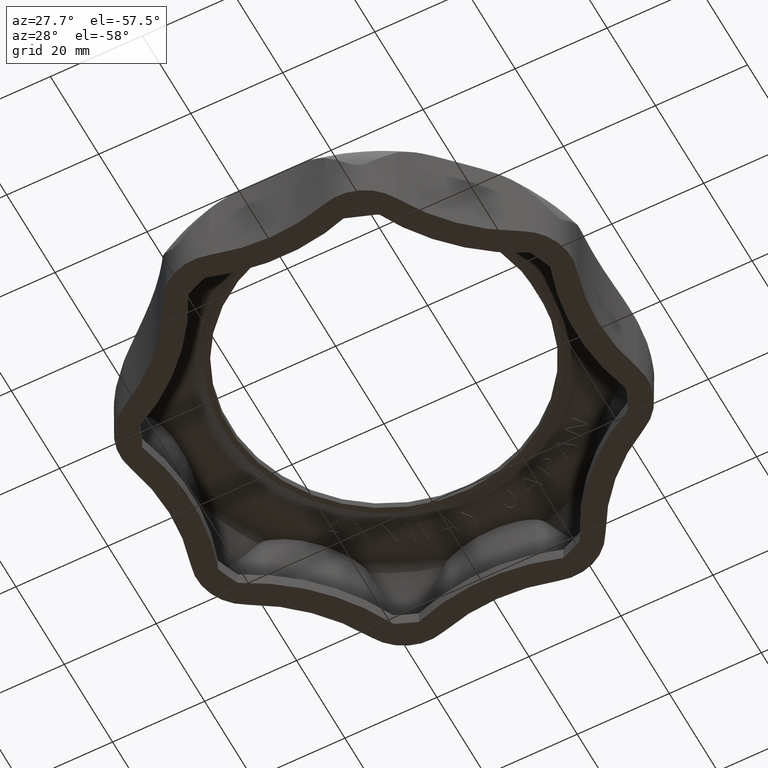
[diagram: clean part render]
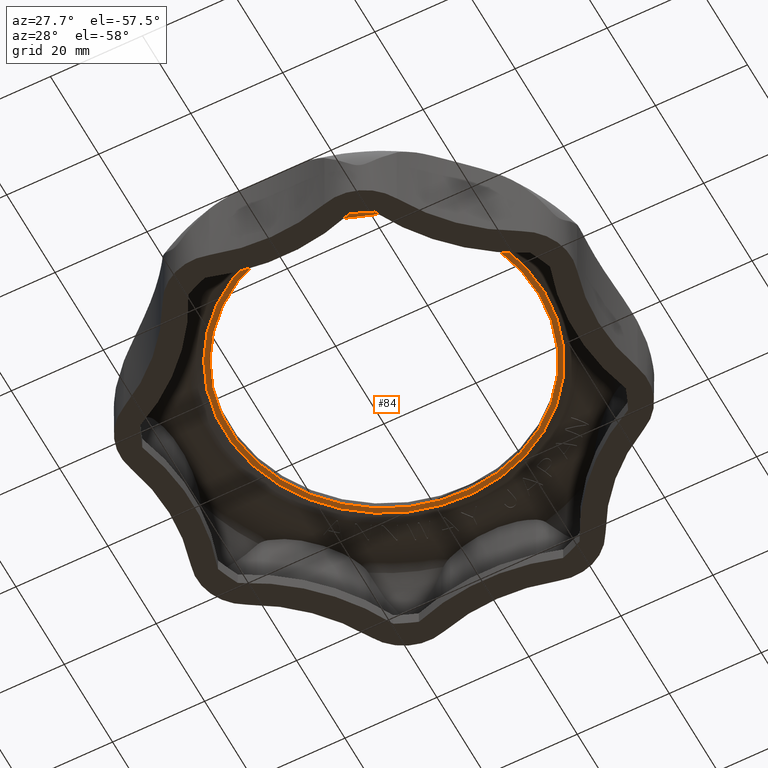
[diagram: same view with one face highlighted and labeled with its STEP entity id]
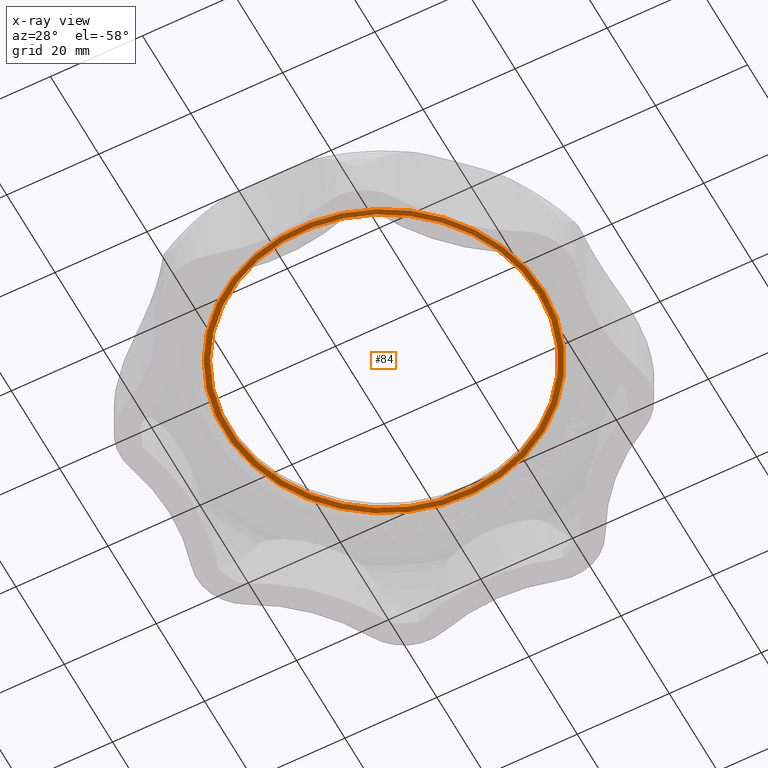
[diagram: x-ray of the same camera — body ghosted, the highlighted face saturated]
A machine part, auxiliary view. The second image highlights one B-rep face of the part: STEP entity #84.
The next image is the same camera in x-ray: the body ghosted, the highlighted face saturated — about 25% of this face is hidden behind the body in this view.
In plain terms, the highlighted planar face has unit normal (0, 0, -1).
Its self-contained STEP definition (entity closure, byte-faithful):
#84 = ADVANCED_FACE( '', ( #2365, #2366 ), #2367, .T. );
#2365 = FACE_OUTER_BOUND( '', #6897, .T. );
#2366 = FACE_BOUND( '', #6898, .T. );
#2367 = PLANE( '', #6899 );
#6897 = EDGE_LOOP( '', ( #13561 ) );
#6898 = EDGE_LOOP( '', ( #13562 ) );
#6899 = AXIS2_PLACEMENT_3D( '', #13563, #13564, #13565 );
#13561 = ORIENTED_EDGE( '', *, *, #32587, .F. );
#13562 = ORIENTED_EDGE( '', *, *, #33540, .T. );
#13563 = CARTESIAN_POINT( '', ( -32.0664703316366, -13.2823669087984, 20.2996579232147 ) );
#13564 = DIRECTION( '', ( 3.31376091451462E-017, 8.00012654228307E-017, -1.00000000000000 ) );
#13565 = DIRECTION( '', ( -0.923879532511287, -0.382683432365090, -6.12303176911189E-017 ) );
#32587 = EDGE_CURVE( '', #40233, #40233, #40234, .T. );
#33540 = EDGE_CURVE( '', #42137, #42137, #42138, .T. );
#40233 = VERTEX_POINT( '', #54643 );
#40234 = CIRCLE( '', #54644, 34.7084973778708 );
#42137 = VERTEX_POINT( '', #59409 );
#42138 = CIRCLE( '', #59410, 33.5000000000000 );
#54643 = CARTESIAN_POINT( '', ( 32.0664703316365, 13.2823669087983, 20.2996579232147 ) );
#54644 = AXIS2_PLACEMENT_3D( '', #77793, #77794, #77795 );
#59409 = CARTESIAN_POINT( '', ( 30.9499643391281, 12.8198949842305, 20.2996579232147 ) );
#59410 = AXIS2_PLACEMENT_3D( '', #77940, #77941, #77942 );
#77793 = CARTESIAN_POINT( '', ( 0.000000000000000, 0.000000000000000, 20.2996579232147 ) );
#77794 = DIRECTION( '', ( -3.31376091451462E-017, -8.00012654228307E-017, 1.00000000000000 ) );
#77795 = DIRECTION( '', ( 0.923879532511287, 0.382683432365090, 6.12303176911189E-017 ) );
#77940 = CARTESIAN_POINT( '', ( 0.000000000000000, 0.000000000000000, 20.2996579232147 ) );
#77941 = DIRECTION( '', ( -3.31376091451462E-017, -8.00012654228307E-017, 1.00000000000000 ) );
#77942 = DIRECTION( '', ( 0.923879532511287, 0.382683432365090, 6.12303176911189E-017 ) );